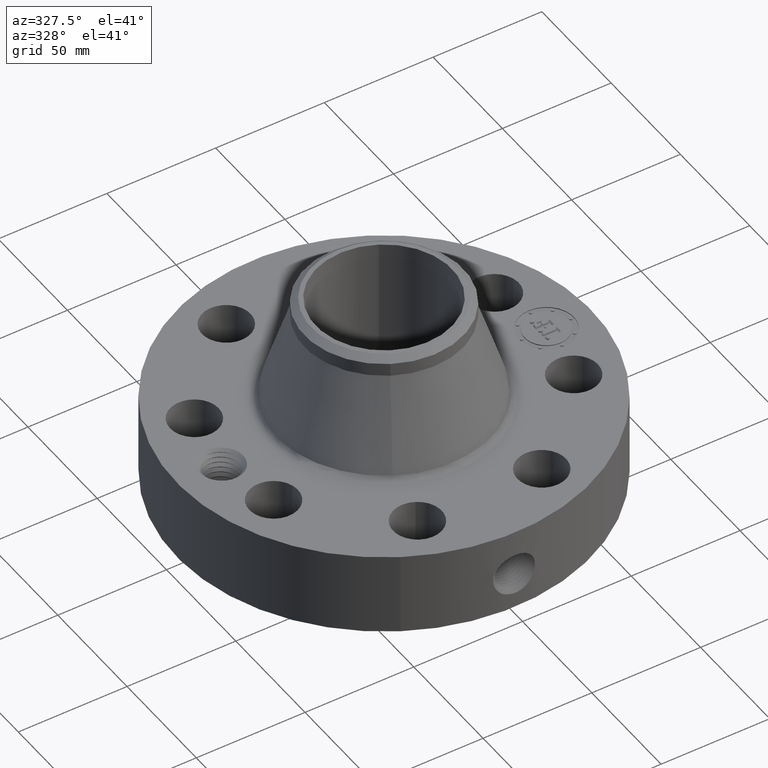
[diagram: clean part render]
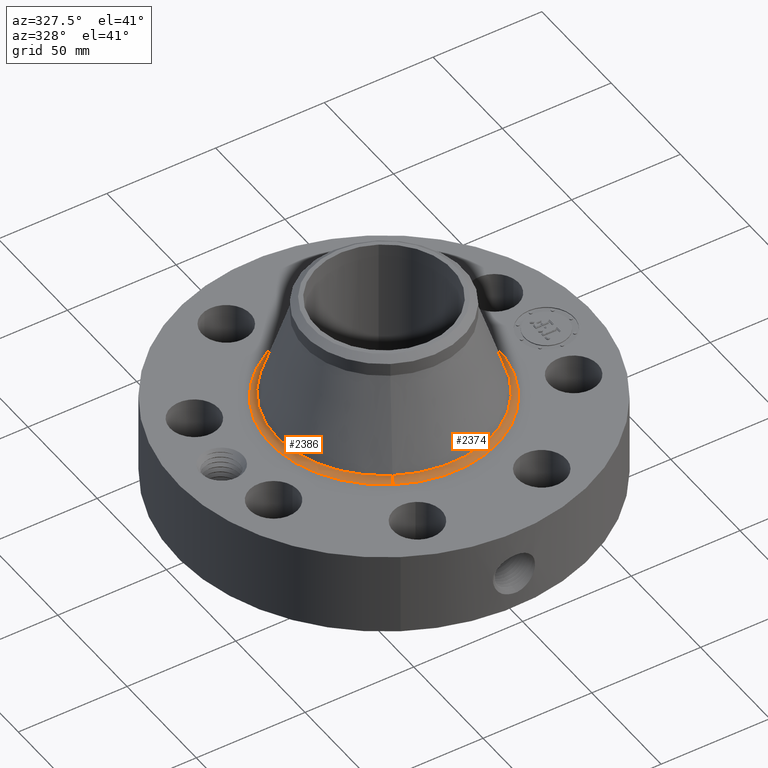
[diagram: same view with one multi-face feature highlighted, each face labeled with its STEP entity id]
A machine part, auxiliary view. The highlighted faces form ONE feature: a constant-radius fillet chain: 2 tangent blend faces with common blend radius 3.048 mm. The faces share edges in the B-rep.
Their STEP definitions:
[1] entity #2386 (Torus):
#591=AXIS2_PLACEMENT_3D('Circle Axis2P3D',#589,#590,$) ;
#2347=AXIS2_PLACEMENT_3D('Torus Axis2P3D',#2344,#2345,#2346) ;
#2351=AXIS2_PLACEMENT_3D('Circle Axis2P3D',#2349,#2350,$) ;
#2365=AXIS2_PLACEMENT_3D('Circle Axis2P3D',#2363,#2364,$) ;
#2377=AXIS2_PLACEMENT_3D('Circle Axis2P3D',#2375,#2376,$) ;
#589=CARTESIAN_POINT('Axis2P3D Location',(0.,0.,1.75000000001)) ;
#593=CARTESIAN_POINT('Vertex',(-0.986542168489,-1.80585332637,1.75000000001)) ;
#595=CARTESIAN_POINT('Vertex',(0.986542168489,1.80585332637,1.75000000001)) ;
#2344=CARTESIAN_POINT('Axis2P3D Location',(0.,0.,1.87000000001)) ;
#2349=CARTESIAN_POINT('Axis2P3D Location',(0.986542168489,1.80585332637,1.87000000001)) ;
#2353=CARTESIAN_POINT('Vertex',(0.93171691789,1.70549637831,1.83363140266)) ;
#2360=CARTESIAN_POINT('Vertex',(-0.93171691789,-1.70549637831,1.83363140266)) ;
#2363=CARTESIAN_POINT('Axis2P3D Location',(-0.986542168489,-1.80585332637,1.87000000001)) ;
#2375=CARTESIAN_POINT('Axis2P3D Location',(0.,0.,1.83363140266)) ;
#590=DIRECTION('Axis2P3D Direction',(0.,0.,-0.0393700787402)) ;
#2345=DIRECTION('Axis2P3D Direction',(0.,0.,-0.0393700787402)) ;
#2346=DIRECTION('Axis2P3D XDirection',(-0.0188750212049,-0.0345504945626,0.)) ;
#2350=DIRECTION('Axis2P3D Direction',(-0.0345504945626,0.0188750212049,0.)) ;
#2364=DIRECTION('Axis2P3D Direction',(0.0345504945626,-0.0188750212049,0.)) ;
#2376=DIRECTION('Axis2P3D Direction',(0.,0.,-0.0393700787402)) ;
#2381=ORIENTED_EDGE('',*,*,#597,.F.) ;
#2382=ORIENTED_EDGE('',*,*,#2367,.T.) ;
#2383=ORIENTED_EDGE('',*,*,#2379,.T.) ;
#2384=ORIENTED_EDGE('',*,*,#2355,.F.) ;
#2386=ADVANCED_FACE('PartBody',(#2385),#2348,.F.) ;
#592=CIRCLE('generated circle',#591,2.05775889904) ;
#2352=CIRCLE('generated circle',#2351,0.12) ;
#2366=CIRCLE('generated circle',#2365,0.12) ;
#2378=CIRCLE('generated circle',#2377,1.94340276616) ;
#2348=TOROIDAL_SURFACE('homeo Torus',#2347,2.05775889904,0.12) ;
#597=EDGE_CURVE('',#594,#596,#592,.T.) ;
#2355=EDGE_CURVE('',#596,#2354,#2352,.T.) ;
#2367=EDGE_CURVE('',#594,#2361,#2366,.T.) ;
#2379=EDGE_CURVE('',#2361,#2354,#2378,.T.) ;
#2380=EDGE_LOOP('',(#2381,#2382,#2383,#2384)) ;
#2385=FACE_OUTER_BOUND('',#2380,.T.) ;
#594=VERTEX_POINT('',#593) ;
#596=VERTEX_POINT('',#595) ;
#2354=VERTEX_POINT('',#2353) ;
#2361=VERTEX_POINT('',#2360) ;
[2] entity #2374 (Torus):
#600=AXIS2_PLACEMENT_3D('Circle Axis2P3D',#598,#599,$) ;
#2347=AXIS2_PLACEMENT_3D('Torus Axis2P3D',#2344,#2345,#2346) ;
#2351=AXIS2_PLACEMENT_3D('Circle Axis2P3D',#2349,#2350,$) ;
#2358=AXIS2_PLACEMENT_3D('Circle Axis2P3D',#2356,#2357,$) ;
#2365=AXIS2_PLACEMENT_3D('Circle Axis2P3D',#2363,#2364,$) ;
#593=CARTESIAN_POINT('Vertex',(-0.986542168489,-1.80585332637,1.75000000001)) ;
#595=CARTESIAN_POINT('Vertex',(0.986542168489,1.80585332637,1.75000000001)) ;
#598=CARTESIAN_POINT('Axis2P3D Location',(0.,0.,1.75000000001)) ;
#2344=CARTESIAN_POINT('Axis2P3D Location',(0.,0.,1.87000000001)) ;
#2349=CARTESIAN_POINT('Axis2P3D Location',(0.986542168489,1.80585332637,1.87000000001)) ;
#2353=CARTESIAN_POINT('Vertex',(0.93171691789,1.70549637831,1.83363140266)) ;
#2356=CARTESIAN_POINT('Axis2P3D Location',(0.,0.,1.83363140266)) ;
#2360=CARTESIAN_POINT('Vertex',(-0.93171691789,-1.70549637831,1.83363140266)) ;
#2363=CARTESIAN_POINT('Axis2P3D Location',(-0.986542168489,-1.80585332637,1.87000000001)) ;
#599=DIRECTION('Axis2P3D Direction',(0.,0.,-0.0393700787402)) ;
#2345=DIRECTION('Axis2P3D Direction',(0.,0.,-0.0393700787402)) ;
#2346=DIRECTION('Axis2P3D XDirection',(-0.0188750212049,-0.0345504945626,0.)) ;
#2350=DIRECTION('Axis2P3D Direction',(-0.0345504945626,0.0188750212049,0.)) ;
#2357=DIRECTION('Axis2P3D Direction',(0.,0.,-0.0393700787402)) ;
#2364=DIRECTION('Axis2P3D Direction',(0.0345504945626,-0.0188750212049,0.)) ;
#2369=ORIENTED_EDGE('',*,*,#602,.F.) ;
#2370=ORIENTED_EDGE('',*,*,#2355,.T.) ;
#2371=ORIENTED_EDGE('',*,*,#2362,.T.) ;
#2372=ORIENTED_EDGE('',*,*,#2367,.F.) ;
#2374=ADVANCED_FACE('PartBody',(#2373),#2348,.F.) ;
#601=CIRCLE('generated circle',#600,2.05775889904) ;
#2352=CIRCLE('generated circle',#2351,0.12) ;
#2359=CIRCLE('generated circle',#2358,1.94340276616) ;
#2366=CIRCLE('generated circle',#2365,0.12) ;
#2348=TOROIDAL_SURFACE('homeo Torus',#2347,2.05775889904,0.12) ;
#602=EDGE_CURVE('',#596,#594,#601,.T.) ;
#2355=EDGE_CURVE('',#596,#2354,#2352,.T.) ;
#2362=EDGE_CURVE('',#2354,#2361,#2359,.T.) ;
#2367=EDGE_CURVE('',#594,#2361,#2366,.T.) ;
#2368=EDGE_LOOP('',(#2369,#2370,#2371,#2372)) ;
#2373=FACE_OUTER_BOUND('',#2368,.T.) ;
#594=VERTEX_POINT('',#593) ;
#596=VERTEX_POINT('',#595) ;
#2354=VERTEX_POINT('',#2353) ;
#2361=VERTEX_POINT('',#2360) ;